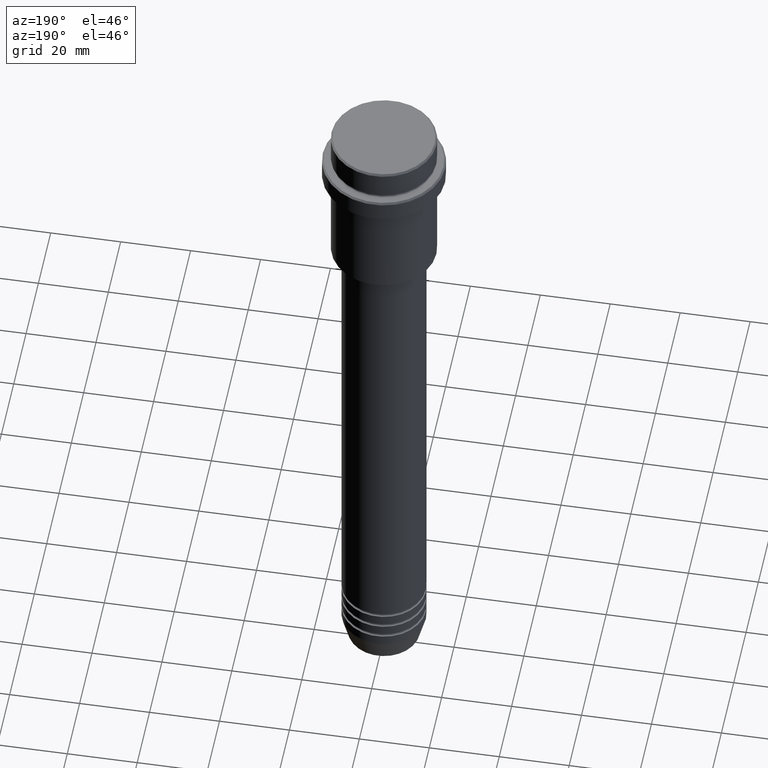
[diagram: clean part render]
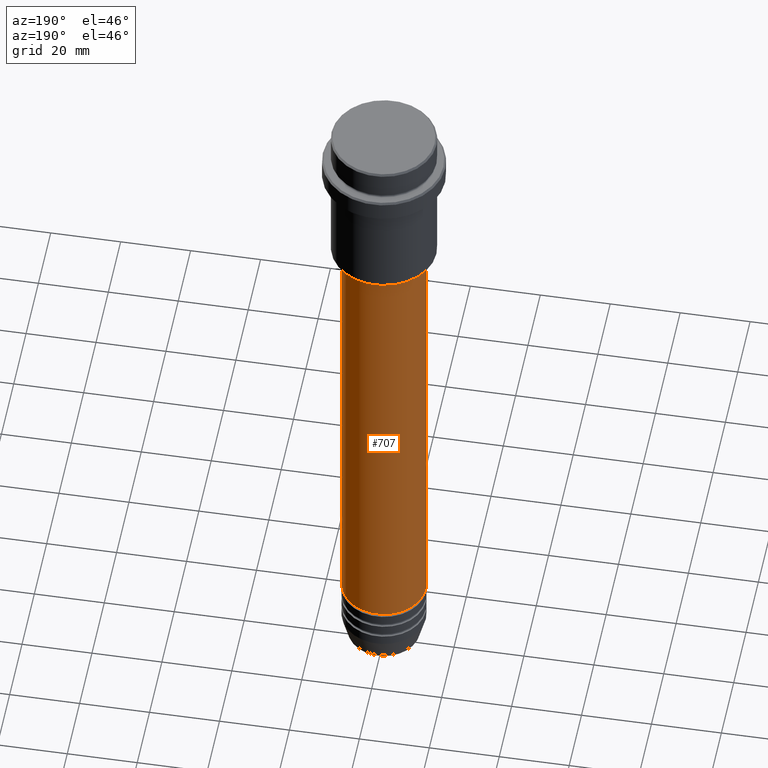
[diagram: same view with one face highlighted and labeled with its STEP entity id]
A machine part, auxiliary view. The second image highlights one B-rep face of the part: STEP entity #707.
In plain terms, the highlighted cylindrical surface (partial cylindrical patch) has radius 12 mm, axis along (-0, -0, 1).
Its self-contained STEP definition (entity closure, byte-faithful):
#95 = ORIENTED_EDGE ( 'NONE', *, *, #1244, .T. ) ;
#97 = EDGE_CURVE ( 'NONE', #233, #885, #918, .T. ) ;
#157 = DIRECTION ( 'NONE',  ( 1.000000000000000000, 0.000000000000000000, 0.000000000000000000 ) ) ;
#178 = CARTESIAN_POINT ( 'NONE',  ( -12.00000000000000000, 1.469576158976823947E-15, 0.000000000000000000 ) ) ;
#183 = DIRECTION ( 'NONE',  ( -0.000000000000000000, -0.000000000000000000, 1.000000000000000000 ) ) ;
#233 = VERTEX_POINT ( 'NONE', #416 ) ;
#242 = AXIS2_PLACEMENT_3D ( 'NONE', #1155, #1379, #1041 ) ;
#268 = AXIS2_PLACEMENT_3D ( 'NONE', #332, #1094, #795 ) ;
#296 = VERTEX_POINT ( 'NONE', #1062 ) ;
#332 = CARTESIAN_POINT ( 'NONE',  ( 0.000000000000000000, 0.000000000000000000, -46.00000000000002132 ) ) ;
#393 = LINE ( 'NONE', #954, #577 ) ;
#416 = CARTESIAN_POINT ( 'NONE',  ( 12.00000000000000000, 0.000000000000000000, -180.9999999999999147 ) ) ;
#478 = VECTOR ( 'NONE', #632, 1000.000000000000000 ) ;
#539 = ORIENTED_EDGE ( 'NONE', *, *, #1314, .F. ) ;
#577 = VECTOR ( 'NONE', #183, 1000.000000000000000 ) ;
#601 = AXIS2_PLACEMENT_3D ( 'NONE', #699, #605, #157 ) ;
#605 = DIRECTION ( 'NONE',  ( -0.000000000000000000, -0.000000000000000000, 1.000000000000000000 ) ) ;
#608 = CYLINDRICAL_SURFACE ( 'NONE', #242, 12.00000000000000000 ) ;
#632 = DIRECTION ( 'NONE',  ( -0.000000000000000000, -0.000000000000000000, 1.000000000000000000 ) ) ;
#682 = CARTESIAN_POINT ( 'NONE',  ( -11.99999999999999822, 1.469576158976823750E-15, -46.00000000000002132 ) ) ;
#693 = ORIENTED_EDGE ( 'NONE', *, *, #97, .T. ) ;
#699 = CARTESIAN_POINT ( 'NONE',  ( 0.000000000000000000, 0.000000000000000000, -180.9999999999999147 ) ) ;
#707 = ADVANCED_FACE ( 'NONE', ( #1053 ), #608, .T. ) ;
#730 = EDGE_LOOP ( 'NONE', ( #693, #95, #539, #922 ) ) ;
#795 = DIRECTION ( 'NONE',  ( 1.000000000000000000, 0.000000000000000000, 0.000000000000000000 ) ) ;
#885 = VERTEX_POINT ( 'NONE', #998 ) ;
#918 = CIRCLE ( 'NONE', #601, 12.00000000000000000 ) ;
#922 = ORIENTED_EDGE ( 'NONE', *, *, #997, .F. ) ;
#938 = CIRCLE ( 'NONE', #268, 11.99999999999999822 ) ;
#954 = CARTESIAN_POINT ( 'NONE',  ( 12.00000000000000000, 0.000000000000000000, 0.000000000000000000 ) ) ;
#997 = EDGE_CURVE ( 'NONE', #233, #296, #393, .T. ) ;
#998 = CARTESIAN_POINT ( 'NONE',  ( -12.00000000000000000, 1.469576158976823947E-15, -180.9999999999999147 ) ) ;
#1041 = DIRECTION ( 'NONE',  ( 1.000000000000000000, 0.000000000000000000, 0.000000000000000000 ) ) ;
#1053 = FACE_OUTER_BOUND ( 'NONE', #730, .T. ) ;
#1062 = CARTESIAN_POINT ( 'NONE',  ( 11.99999999999999822, 0.000000000000000000, -46.00000000000002132 ) ) ;
#1094 = DIRECTION ( 'NONE',  ( -0.000000000000000000, -0.000000000000000000, 1.000000000000000000 ) ) ;
#1155 = CARTESIAN_POINT ( 'NONE',  ( 0.000000000000000000, 0.000000000000000000, 0.000000000000000000 ) ) ;
#1200 = VERTEX_POINT ( 'NONE', #682 ) ;
#1244 = EDGE_CURVE ( 'NONE', #885, #1200, #1270, .T. ) ;
#1270 = LINE ( 'NONE', #178, #478 ) ;
#1314 = EDGE_CURVE ( 'NONE', #296, #1200, #938, .T. ) ;
#1379 = DIRECTION ( 'NONE',  ( -0.000000000000000000, -0.000000000000000000, 1.000000000000000000 ) ) ;